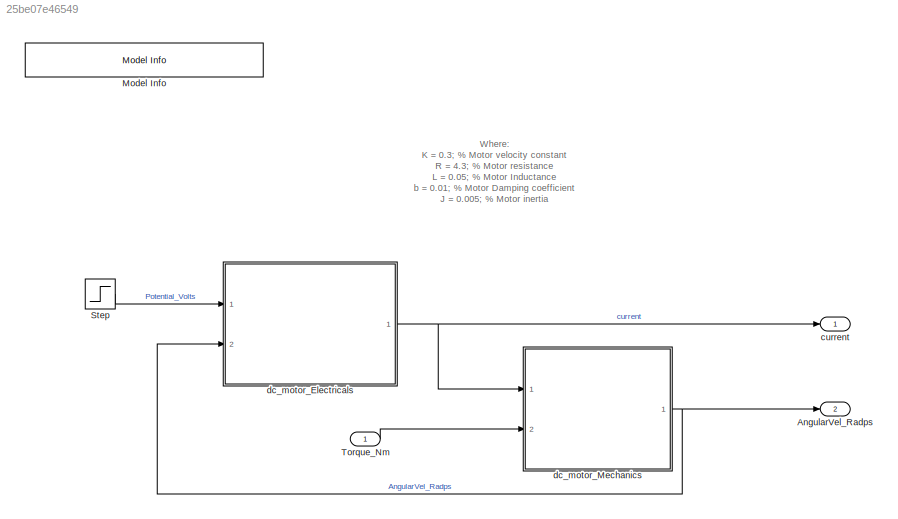
MODEL slx_25be07e46549
KIND model
CONFIG AbsTol = auto
CONFIG FixedStep = auto
CONFIG MaxStep = auto
CONFIG MinStep = auto
CONFIG PreLoadFcn = Load_parameters
CONFIG RelTol = 1e-3
CONFIG SampleTimeConstraint = Unconstrained
CONFIG Solver = ode45
CONFIG SolverMode = SingleTasking
CONFIG SolverName = ode45
CONFIG StartTime = 0.0
CONFIG StopTime = 10.0
BLOCK [Outport] AngularVel_Radps
  IconDisplay = Port number
  Port = 2
BLOCK [Reference] Model Info  REF=simulink/Model-Wide
Utilities/Model Info
  Ports = []
  SourceBlock = simulink/Model-Wide\nUtilities/Model Info
  SourceType = CMBlock
BLOCK [Step] Step
  After = 5
  Before = 0.2
  SampleTime = 0
BLOCK [Inport] Torque_Nm
  IconDisplay = Port number
BLOCK [Outport] current 
  IconDisplay = Port number
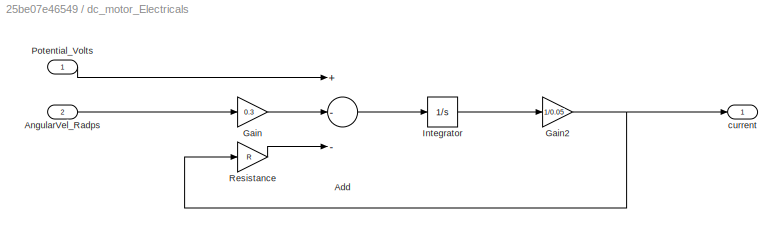
BLOCK [SubSystem] dc_motor_Electricals
  Ports = [2, 1]
  RequestExecContextInheritance = off
  Variant = off
BLOCK [Sum] dc_motor_Electricals/Add
  InputSameDT = off
  Inputs = +--
  OutDataTypeStr = Inherit: Inherit via internal rule
  Ports = [3, 1]
  SaturateOnIntegerOverflow = off
BLOCK [Inport] dc_motor_Electricals/AngularVel_Radps
  IconDisplay = Port number
  Port = 2
BLOCK [Gain] dc_motor_Electricals/Gain
  Gain = 0.3
  OutDataTypeStr = Inherit: Inherit via internal rule
  ParamDataTypeStr = Inherit: Inherit via internal rule
  SaturateOnIntegerOverflow = off
BLOCK [Gain] dc_motor_Electricals/Gain2
  Gain = 1/0.05
  OutDataTypeStr = Inherit: Inherit via internal rule
  ParamDataTypeStr = Inherit: Inherit via internal rule
  SaturateOnIntegerOverflow = off
BLOCK [Integrator] dc_motor_Electricals/Integrator
  Ports = [1, 1]
BLOCK [Inport] dc_motor_Electricals/Potential_Volts
  IconDisplay = Port number
BLOCK [Gain] dc_motor_Electricals/Resistance
  Gain = R
  OutDataTypeStr = Inherit: Inherit via internal rule
  ParamDataTypeStr = Inherit: Inherit via internal rule
  SaturateOnIntegerOverflow = off
BLOCK [Outport] dc_motor_Electricals/current 
  IconDisplay = Port number
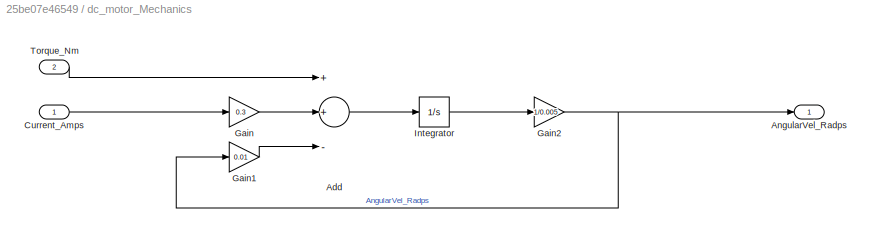
BLOCK [SubSystem] dc_motor_Mechanics
  Ports = [2, 1]
  RequestExecContextInheritance = off
  Variant = off
BLOCK [Sum] dc_motor_Mechanics/Add
  InputSameDT = off
  Inputs = ++-
  OutDataTypeStr = Inherit: Inherit via internal rule
  Ports = [3, 1]
  SaturateOnIntegerOverflow = off
BLOCK [Outport] dc_motor_Mechanics/AngularVel_Radps
  IconDisplay = Port number
BLOCK [Inport] dc_motor_Mechanics/Current_Amps
  IconDisplay = Port number
BLOCK [Gain] dc_motor_Mechanics/Gain
  Gain = 0.3
  OutDataTypeStr = Inherit: Inherit via internal rule
  ParamDataTypeStr = Inherit: Inherit via internal rule
  SaturateOnIntegerOverflow = off
BLOCK [Gain] dc_motor_Mechanics/Gain1
  Gain = 0.01
  OutDataTypeStr = Inherit: Inherit via internal rule
  ParamDataTypeStr = Inherit: Inherit via internal rule
  SaturateOnIntegerOverflow = off
BLOCK [Gain] dc_motor_Mechanics/Gain2
  Gain = 1/0.005
  OutDataTypeStr = Inherit: Inherit via internal rule
  ParamDataTypeStr = Inherit: Inherit via internal rule
  SaturateOnIntegerOverflow = off
BLOCK [Integrator] dc_motor_Mechanics/Integrator
  Ports = [1, 1]
BLOCK [Inport] dc_motor_Mechanics/Torque_Nm
  IconDisplay = Port number
  Port = 2
ANNOTATION (root): Where: K = 0.3; % Motor velocity constant R = 4.3; % Motor resistance L = 0.05; % Motor Inductance b = 0.01; % Motor Damping coefficient J = 0.005; % Motor inertia
LINE Step:1 -> dc_motor_Electricals:1
LINE Torque_Nm:1 -> dc_motor_Mechanics:2
LINE dc_motor_Electricals/Add:1 -> dc_motor_Electricals/Integrator:1
LINE dc_motor_Electricals/AngularVel_Radps:1 -> dc_motor_Electricals/Gain:1
NET dc_motor_Electricals/Gain2:1 -> dc_motor_Electricals/Resistance:1, dc_motor_Electricals/current :1
LINE dc_motor_Electricals/Gain:1 -> dc_motor_Electricals/Add:2
LINE dc_motor_Electricals/Integrator:1 -> dc_motor_Electricals/Gain2:1
LINE dc_motor_Electricals/Potential_Volts:1 -> dc_motor_Electricals/Add:1
LINE dc_motor_Electricals/Resistance:1 -> dc_motor_Electricals/Add:3
NET dc_motor_Electricals:1 -> current :1, dc_motor_Mechanics:1
LINE dc_motor_Mechanics/Add:1 -> dc_motor_Mechanics/Integrator:1
LINE dc_motor_Mechanics/Current_Amps:1 -> dc_motor_Mechanics/Gain:1
LINE dc_motor_Mechanics/Gain1:1 -> dc_motor_Mechanics/Add:3
NET dc_motor_Mechanics/Gain2:1 -> dc_motor_Mechanics/AngularVel_Radps:1, dc_motor_Mechanics/Gain1:1
LINE dc_motor_Mechanics/Gain:1 -> dc_motor_Mechanics/Add:2
LINE dc_motor_Mechanics/Integrator:1 -> dc_motor_Mechanics/Gain2:1
LINE dc_motor_Mechanics/Torque_Nm:1 -> dc_motor_Mechanics/Add:1
NET dc_motor_Mechanics:1 -> AngularVel_Radps:1, dc_motor_Electricals:2
note: NET lines group one-source signal fan-out (src -> all destinations, sorted); 1:1 wires keep LINE
